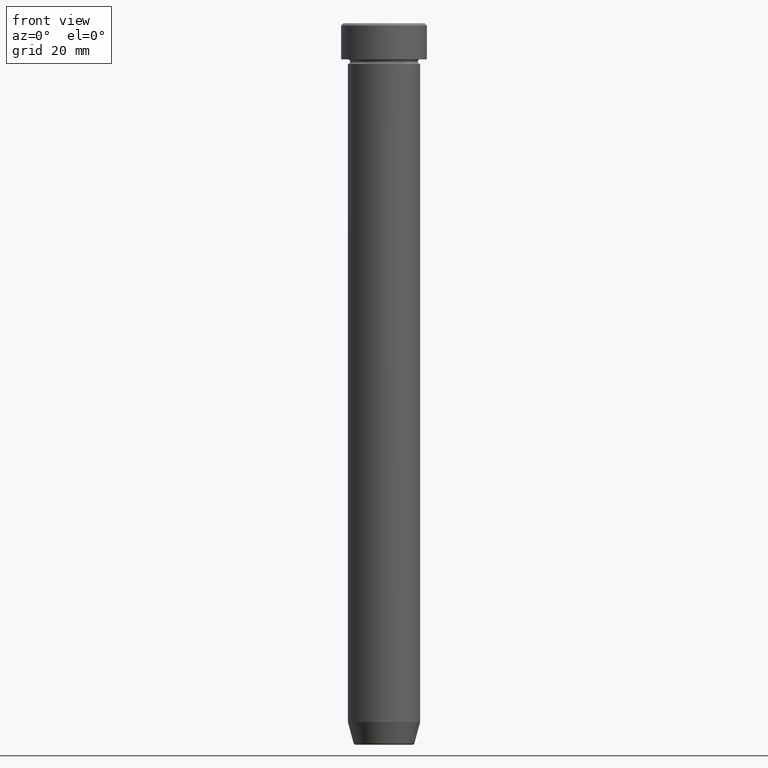
[diagram: clean part render]
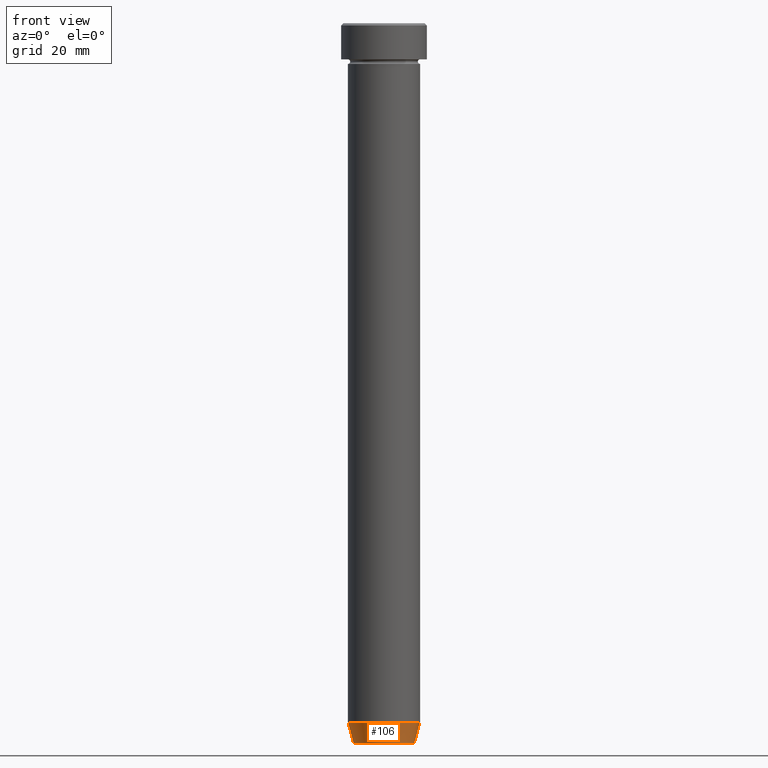
[diagram: same view with one face highlighted and labeled with its STEP entity id]
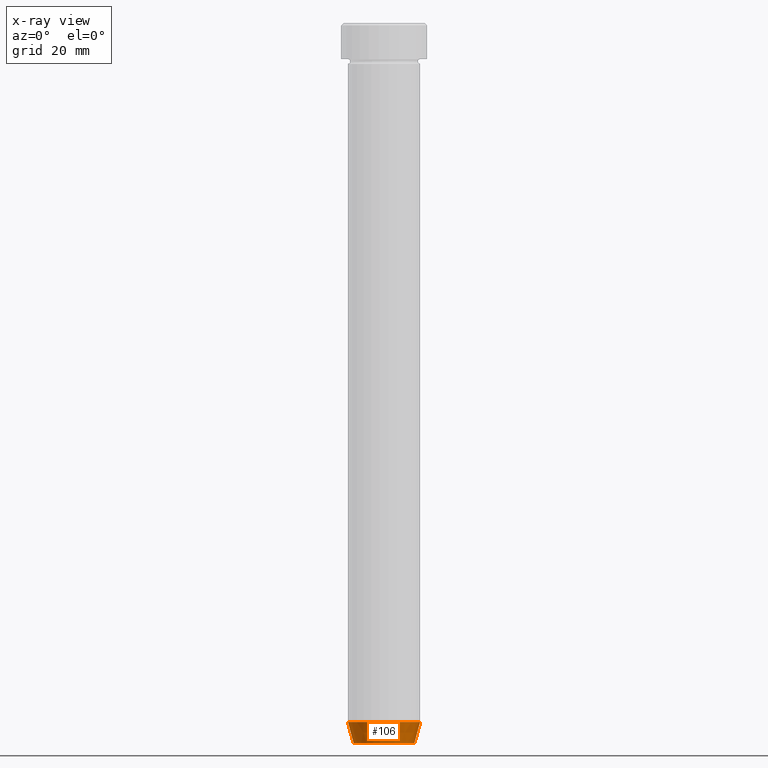
[diagram: x-ray of the same camera — body ghosted, the highlighted face saturated]
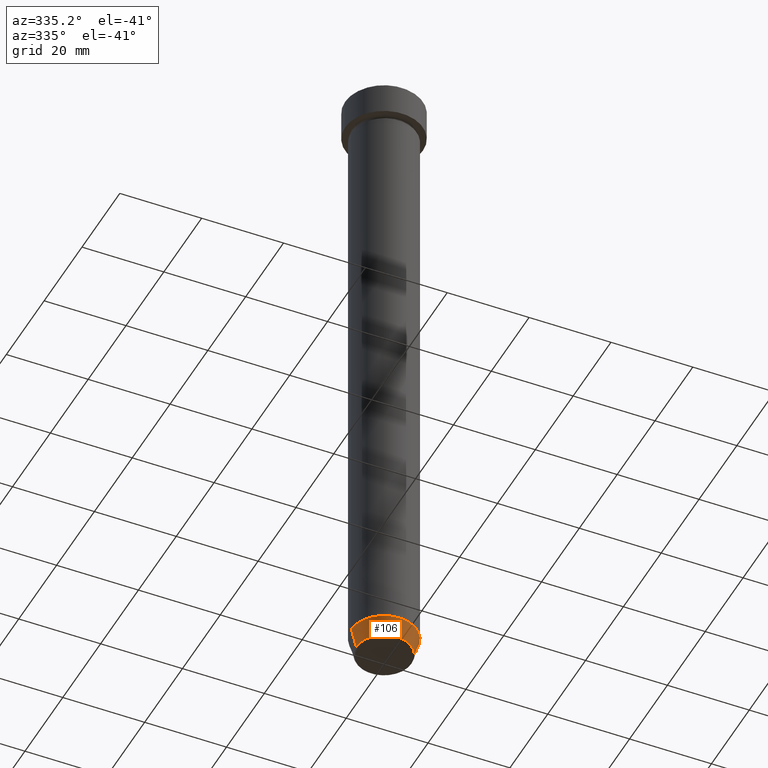
[diagram: same view with one face highlighted and labeled with its STEP entity id]
A machine part, front view. The second image highlights one B-rep face of the part: STEP entity #106.
The next image is the same camera in x-ray: the body ghosted, the highlighted face saturated — about 0% of this face is hidden behind the body in this view.
A second angle (auxiliary view) of the same face is appended — the face is thin or edge-on in the first view.
In plain terms, the highlighted conical surface has half-angle 15 deg.
Its self-contained STEP definition (entity closure, byte-faithful):
#5 = CIRCLE ( 'NONE', #16, 8.000000000000000000 ) ;
#6 = CARTESIAN_POINT ( 'NONE',  ( 8.000000000000000000, 0.000000000000000000, -154.9999999999999716 ) ) ;
#15 = ORIENTED_EDGE ( 'NONE', *, *, #69, .F. ) ;
#16 = AXIS2_PLACEMENT_3D ( 'NONE', #333, #470, #521 ) ;
#22 = EDGE_CURVE ( 'NONE', #556, #249, #5, .T. ) ;
#69 = EDGE_CURVE ( 'NONE', #74, #556, #301, .T. ) ;
#74 = VERTEX_POINT ( 'NONE', #158 ) ;
#75 = FACE_OUTER_BOUND ( 'NONE', #458, .T. ) ;
#104 = ORIENTED_EDGE ( 'NONE', *, *, #253, .T. ) ;
#105 = CARTESIAN_POINT ( 'NONE',  ( -8.000000000000000000, 9.797174393178825657E-16, -154.9999999999999716 ) ) ;
#106 = ADVANCED_FACE ( 'NONE', ( #75 ), #122, .T. ) ;
#119 = CARTESIAN_POINT ( 'NONE',  ( -6.660254037844377528, 8.156458788954351887E-16, -160.0000000000000000 ) ) ;
#120 = EDGE_CURVE ( 'NONE', #566, #249, #495, .T. ) ;
#121 = CARTESIAN_POINT ( 'NONE',  ( 0.000000000000000000, 0.000000000000000000, -160.0000000000000000 ) ) ;
#122 = CONICAL_SURFACE ( 'NONE', #296, 6.660254037844377528, 0.2617993877991494633 ) ;
#158 = CARTESIAN_POINT ( 'NONE',  ( -6.759553456999434218, 9.037619948979304241E-16, -159.6294095225512422 ) ) ;
#168 = CARTESIAN_POINT ( 'NONE',  ( 6.759553456999434218, 0.000000000000000000, -159.6294095225512422 ) ) ;
#209 = DIRECTION ( 'NONE',  ( -0.2588190451025207950, 3.169619151431764941E-17, 0.9659258262890683122 ) ) ;
#249 = VERTEX_POINT ( 'NONE', #6 ) ;
#251 = DIRECTION ( 'NONE',  ( -0.000000000000000000, -0.000000000000000000, 1.000000000000000000 ) ) ;
#253 = EDGE_CURVE ( 'NONE', #74, #566, #329, .T. ) ;
#296 = AXIS2_PLACEMENT_3D ( 'NONE', #121, #251, #391 ) ;
#301 = LINE ( 'NONE', #119, #553 ) ;
#306 = DIRECTION ( 'NONE',  ( 0.2588190451025207950, 0.000000000000000000, 0.9659258262890683122 ) ) ;
#329 = CIRCLE ( 'NONE', #409, 6.759553456999434218 ) ;
#333 = CARTESIAN_POINT ( 'NONE',  ( 0.000000000000000000, 0.000000000000000000, -154.9999999999999716 ) ) ;
#391 = DIRECTION ( 'NONE',  ( 1.000000000000000000, 0.000000000000000000, 0.000000000000000000 ) ) ;
#409 = AXIS2_PLACEMENT_3D ( 'NONE', #462, #504, #551 ) ;
#442 = CARTESIAN_POINT ( 'NONE',  ( 6.660254037844377528, 0.000000000000000000, -160.0000000000000000 ) ) ;
#446 = VECTOR ( 'NONE', #306, 1000.000000000000114 ) ;
#458 = EDGE_LOOP ( 'NONE', ( #15, #104, #502, #541 ) ) ;
#462 = CARTESIAN_POINT ( 'NONE',  ( 0.000000000000000000, 0.000000000000000000, -159.6294095225512422 ) ) ;
#470 = DIRECTION ( 'NONE',  ( -0.000000000000000000, -0.000000000000000000, 1.000000000000000000 ) ) ;
#495 = LINE ( 'NONE', #442, #446 ) ;
#502 = ORIENTED_EDGE ( 'NONE', *, *, #120, .T. ) ;
#504 = DIRECTION ( 'NONE',  ( -0.000000000000000000, -0.000000000000000000, 1.000000000000000000 ) ) ;
#521 = DIRECTION ( 'NONE',  ( 1.000000000000000000, 0.000000000000000000, 0.000000000000000000 ) ) ;
#541 = ORIENTED_EDGE ( 'NONE', *, *, #22, .F. ) ;
#551 = DIRECTION ( 'NONE',  ( -1.000000000000000000, 0.000000000000000000, 0.000000000000000000 ) ) ;
#553 = VECTOR ( 'NONE', #209, 1000.000000000000114 ) ;
#556 = VERTEX_POINT ( 'NONE', #105 ) ;
#566 = VERTEX_POINT ( 'NONE', #168 ) ;